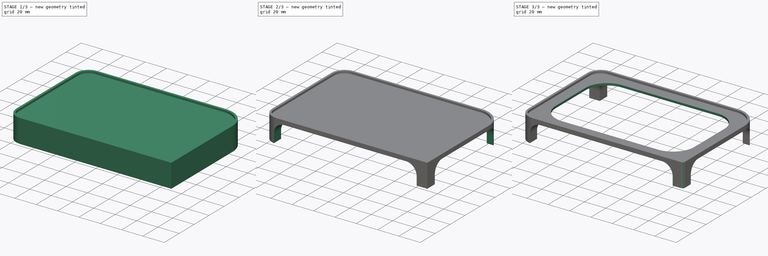
[diagram: build sequence overview — one tinted view per stage of 3, left to right]
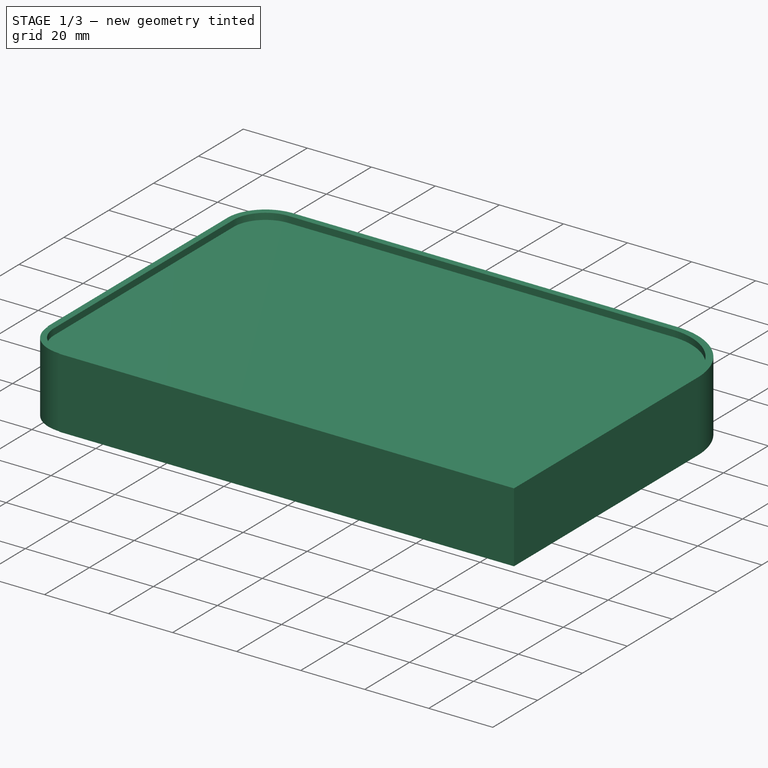
[diagram: stage 1 of 3 — iso view after this stage's code; geometry added in this stage tinted green]
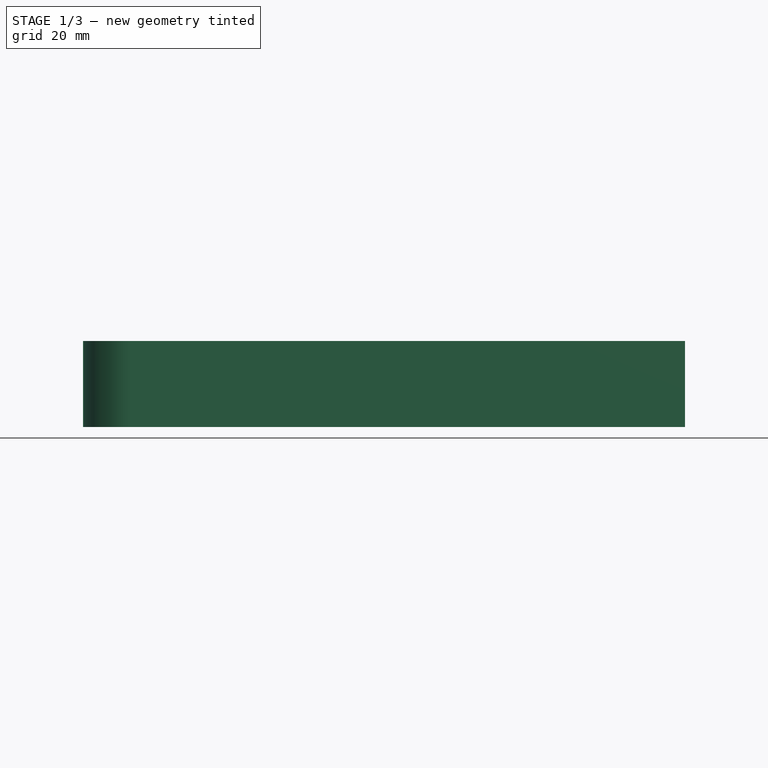
[diagram: stage 1 of 3 — front view after this stage's code; geometry added in this stage tinted green]
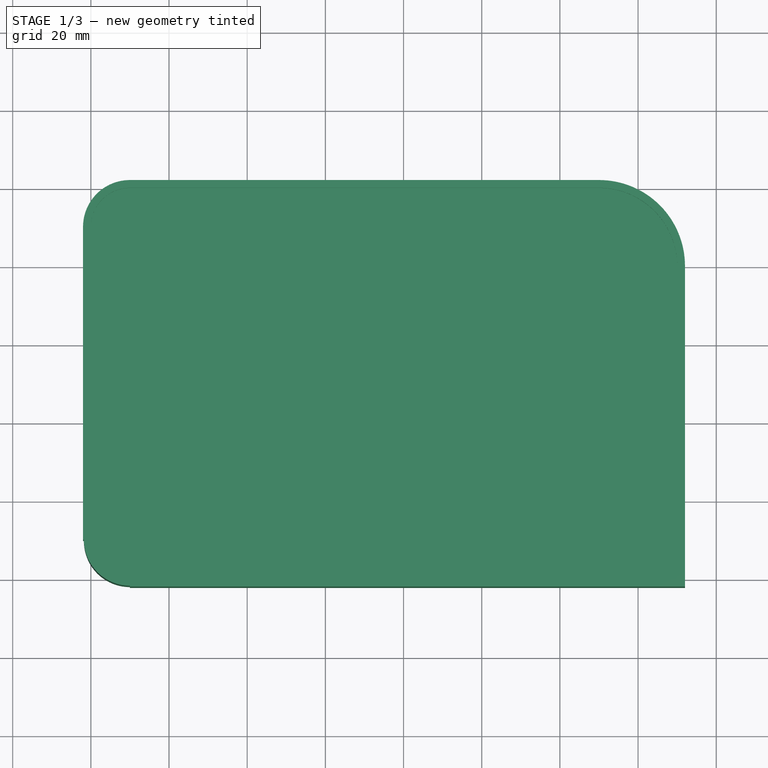
[diagram: stage 1 of 3 — top view after this stage's code; geometry added in this stage tinted green]
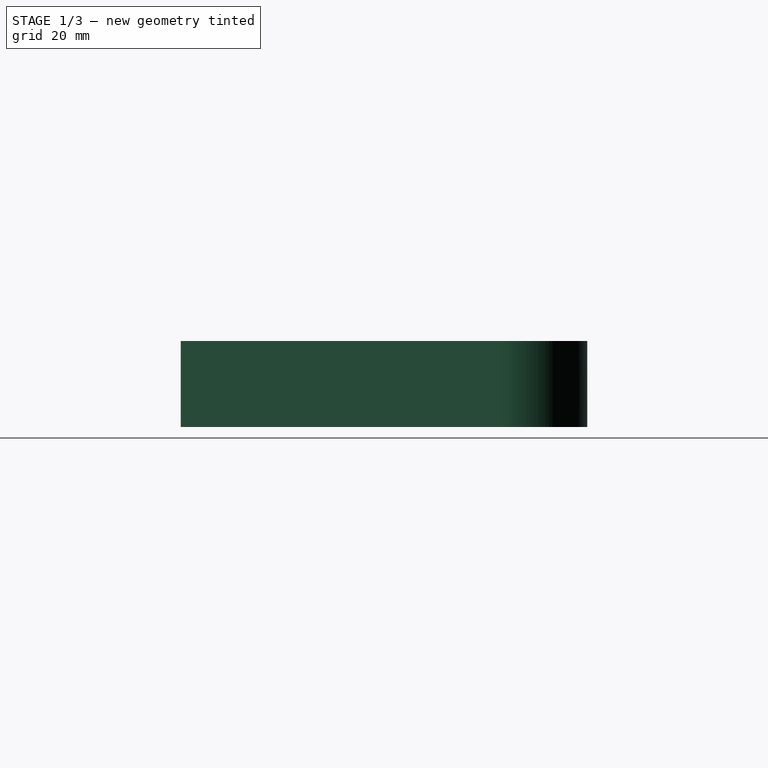
[diagram: stage 1 of 3 — right view after this stage's code; geometry added in this stage tinted green]
FCSTD DOCUMENT  (FreeCAD 0.21R33771 (Git))
Label: CarbonX1 poop chute table
License: All rights reserved
LicenseURL: http://en.wikipedia.org/wiki/All_rights_reserved
objects: Sketcher::SketchObject×4, PartDesign::Pocket×4, Part::Feature×1, PartDesign::FeatureBase×1, PartDesign::Pad×1, PartDesign::Fillet×1, PartDesign::Body×1
note: 19 computed .brp shape members not serialized (recipe doc carries the construction recipe); baked Part::Feature solids carry a one-line shape summary decoded from their .brp

FEATURE [Sketcher::SketchObject] Sketch
  FullyConstrained = true
  MapMode = 5
  Support = -> [XY_Plane]
  sketch-geometry (9):
    g0: ArcOfCircle CenterX=10 CenterY=10 CenterZ=0 NormalX=0 NormalY=0 NormalZ=1 AngleXU=0 Radius=10 StartAngle=3.14159 EndAngle=4.71239
    g1: LineSegment StartX=0 StartY=10 StartZ=0 EndX=0 EndY=90 EndZ=0
    g2: ArcOfCircle CenterX=10 CenterY=90 CenterZ=0 NormalX=0 NormalY=0 NormalZ=1 AngleXU=0 Radius=10 StartAngle=1.5708 EndAngle=3.14159
    g3: LineSegment StartX=10 StartY=100 StartZ=0 EndX=130 EndY=100 EndZ=0
    g4: ArcOfCircle CenterX=130 CenterY=80 CenterZ=0 NormalX=0 NormalY=0 NormalZ=1 AngleXU=0 Radius=20 StartAngle=0 EndAngle=1.5708
    g5: LineSegment StartX=150 StartY=80 StartZ=0 EndX=150 EndY=0 EndZ=0
    g6: LineSegment StartX=150 StartY=0 StartZ=0 EndX=10 EndY=0 EndZ=0
    g7: GeomPoint X=0 Y=0 Z=0
    g8: GeomPoint X=150 Y=100 Z=0
  constraints (21):
    c: Tangent(g0,g1) = 1.5708
    c: Tangent(g1,g2) = 1.5708
    c: Tangent(g2,g3) = 1.5708
    c: Tangent(g3,g4) = 1.5708
    c: Tangent(g4,g5) = 1.5708
    c: Tangent(g6,g0) = 1.5708
    c: Horizontal(g3)
    c: Horizontal(g6)
    c: Vertical(g1)
    c: Vertical(g5)
    c: Equal(g0,g2)
    c: PointOnObject(g7,g1)
    c: PointOnObject(g7,g6)
    c: PointOnObject(g8,g3)
    c: PointOnObject(g8,g5)
    c: Coincident(g7,g-1)
    c: Radius(g4) = 20
    c: Radius(g2) = 10
    c: Coincident(g5,g6)
    c: DistanceY(g7,g2) = 100
    c: DistanceX(g7,g5) = 150
FEATURE [Part::Feature] Offset
  shape: bbox 154 x 104 x 2e-07 mm, 0 faces, 0 solids (baked)
FEATURE [PartDesign::FeatureBase] BaseFeature
  BaseFeature = -> Offset
FEATURE [PartDesign::Pad] Pad
  BaseFeature = -> BaseFeature
  Direction = (0,0,1)
  Length = 22
  Length2 = 10
  Profile = -> BaseFeature
  Reversed = true
  Type = 0
FEATURE [PartDesign::Pocket] Pocket
  BaseFeature = -> Pad
  Direction = (0,0,-1)
  Length = 2
  Length2 = 5
  Profile = -> Sketch
  ReferenceAxis = -> Sketch [N_Axis]
  Type = 0
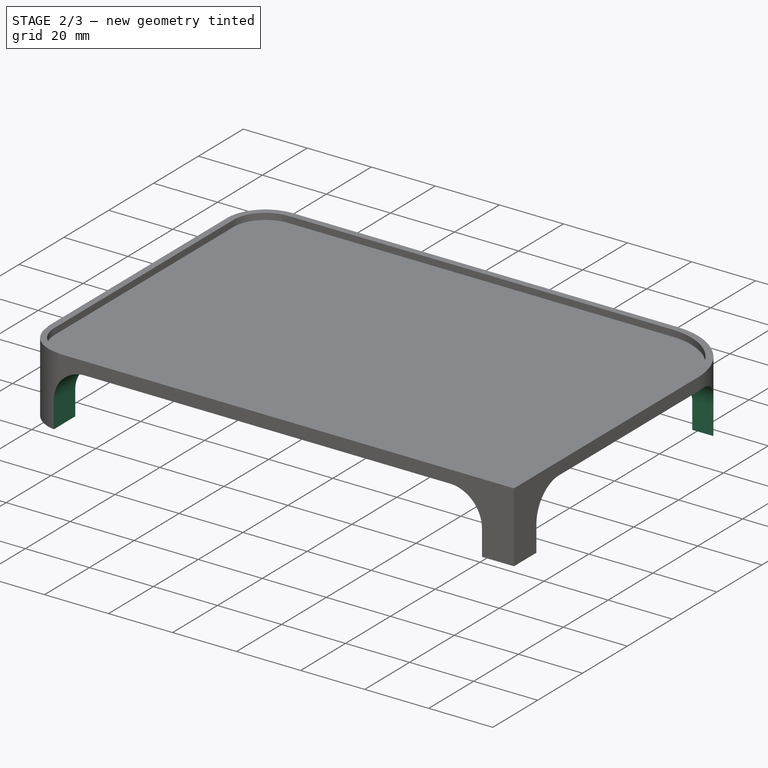
[diagram: stage 2 of 3 — iso view after this stage's code; geometry added in this stage tinted green]
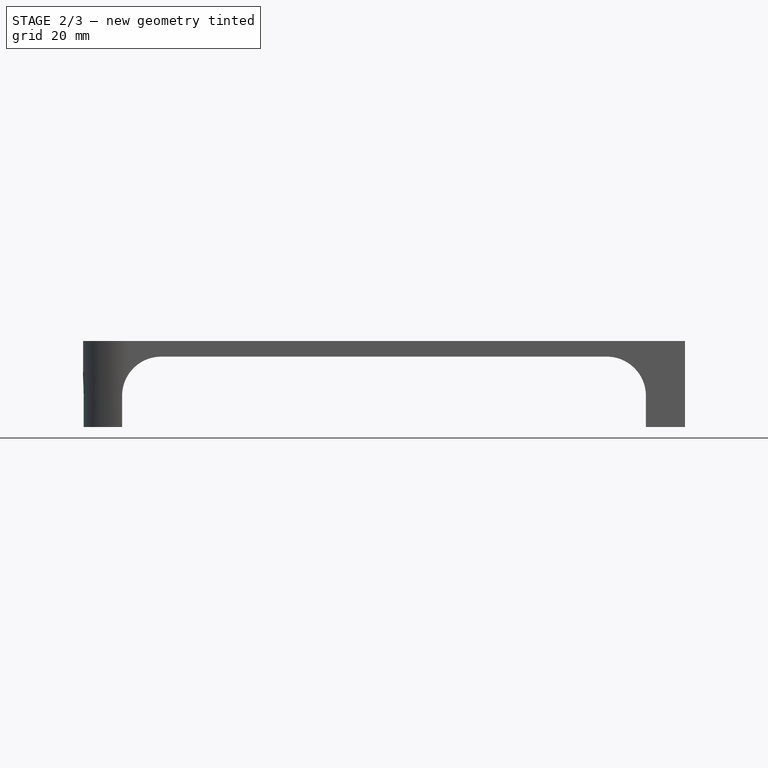
[diagram: stage 2 of 3 — front view after this stage's code; geometry added in this stage tinted green]
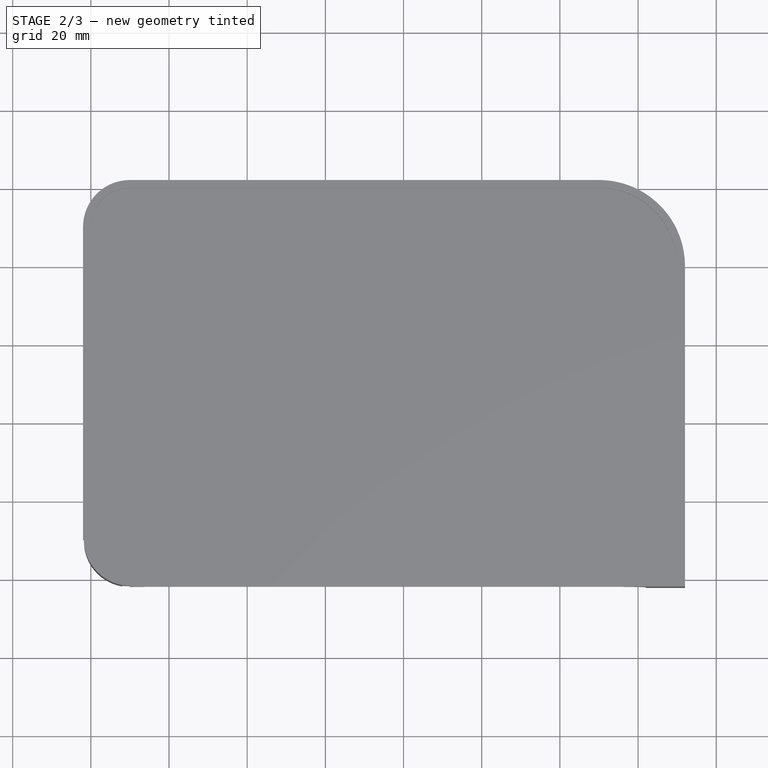
[diagram: stage 2 of 3 — top view after this stage's code; geometry added in this stage tinted green]
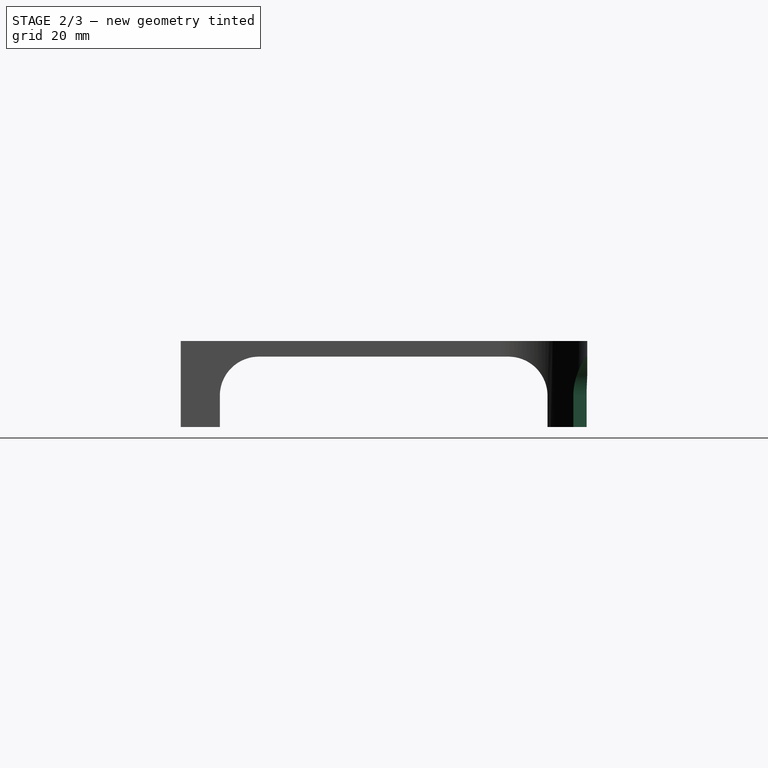
[diagram: stage 2 of 3 — right view after this stage's code; geometry added in this stage tinted green]
FEATURE [Sketcher::SketchObject] Sketch001
  ExternalGeometry = -> [Pocket]
  FullyConstrained = true
  MapMode = 5
  Placement = pos=(0,0,0) rot=(1,0,0;1.5708rad)
  Support = -> [XZ_Plane]
  sketch-geometry (7):
    g0: LineSegment StartX=8 StartY=-22 StartZ=0 EndX=8 EndY=-14 EndZ=0
    g1: ArcOfCircle CenterX=18 CenterY=-14 CenterZ=0 NormalX=0 NormalY=0 NormalZ=1 AngleXU=0 Radius=10 StartAngle=1.5708 EndAngle=3.14159
    g2: LineSegment StartX=18 StartY=-4 StartZ=0 EndX=132 EndY=-4 EndZ=0
    g3: ArcOfCircle CenterX=132 CenterY=-14 CenterZ=0 NormalX=0 NormalY=0 NormalZ=1 AngleXU=0 Radius=10 StartAngle=0 EndAngle=1.5708
    g4: LineSegment StartX=142 StartY=-14 StartZ=0 EndX=142 EndY=-22 EndZ=0
    g5: LineSegment StartX=142 StartY=-22 StartZ=0 EndX=8 EndY=-22 EndZ=0
    g6: GeomPoint X=75 Y=-22 Z=0
  constraints (18):
    c: Vertical(g0)
    c: Tangent(g0,g1) = 1.5708
    c: Coincident(g1,g2)
    c: Horizontal(g2)
    c: Tangent(g2,g3) = 1.5708
    c: Coincident(g3,g4)
    c: Vertical(g4)
    c: Coincident(g4,g5)
    c: Coincident(g5,g0)
    c: Horizontal(g5)
    c: Symmetric(g0,g4,g6)
    c: Symmetric(g-3,g-4,g6)
    c: Horizontal(g3,g3)
    c: Vertical(g1,g1)
    c: Radius(g1) = 10
    c: Equal(g1,g3)
    c: DistanceY(g1,g-1) = 4
    c: DistanceX(g-3,g0) = 10
FEATURE [PartDesign::Pocket] Pocket001
  BaseFeature = -> Pocket
  Direction = (0,1,-2e-16)
  Length = 5
  Length2 = 5
  Midplane = true
  Profile = -> Sketch001
  ReferenceAxis = -> Sketch001 [N_Axis]
  Type = 1
FEATURE [Sketcher::SketchObject] Sketch002
  ExternalGeometry = -> [Pocket001]
  FullyConstrained = true
  MapMode = 5
  Placement = pos=(0,0,0) rot=(0.57735,0.57735,0.57735;2.0944rad)
  Support = -> [YZ_Plane]
  sketch-geometry (7):
    g0: LineSegment StartX=8 StartY=-22 StartZ=0 EndX=8 EndY=-14 EndZ=0
    g1: ArcOfCircle CenterX=18 CenterY=-14 CenterZ=0 NormalX=0 NormalY=0 NormalZ=1 AngleXU=0 Radius=10 StartAngle=1.5708 EndAngle=3.14159
    g2: LineSegment StartX=18 StartY=-4 StartZ=0 EndX=81.8322 EndY=-4 EndZ=0
    g3: ArcOfCircle CenterX=81.8322 CenterY=-14 CenterZ=0 NormalX=0 NormalY=0 NormalZ=1 AngleXU=0 Radius=10 StartAngle=0 EndAngle=1.5708
    g4: LineSegment StartX=91.8322 StartY=-14 StartZ=0 EndX=91.8322 EndY=-22 EndZ=0
    g5: LineSegment StartX=91.8322 StartY=-22 StartZ=0 EndX=8 EndY=-22 EndZ=0
    g6: GeomPoint X=49.9161 Y=-22 Z=0
  constraints (18):
    c: Vertical(g0)
    c: Tangent(g0,g1) = 1.5708
    c: Coincident(g1,g2)
    c: Horizontal(g2)
    c: Tangent(g2,g3) = 1.5708
    c: Coincident(g3,g4)
    c: Vertical(g4)
    c: Coincident(g4,g5)
    c: Coincident(g5,g0)
    c: Horizontal(g5)
    c: Symmetric(g0,g4,g6)
    c: Symmetric(g-3,g-4,g6)
    c: Equal(g1,g3)
    c: Horizontal(g3,g3)
    c: Vertical(g1,g1)
    c: DistanceX(g-3,g0) = 10
    c: DistanceY(g1,g-1) = 4
    c: Radius(g1) = 10
FEATURE [PartDesign::Pocket] Pocket002
  BaseFeature = -> Pocket001
  Direction = (-1,2e-16,-3e-16)
  Length = 5
  Length2 = 5
  Midplane = true
  Profile = -> Sketch002
  ReferenceAxis = -> Sketch002 [N_Axis]
  Type = 1
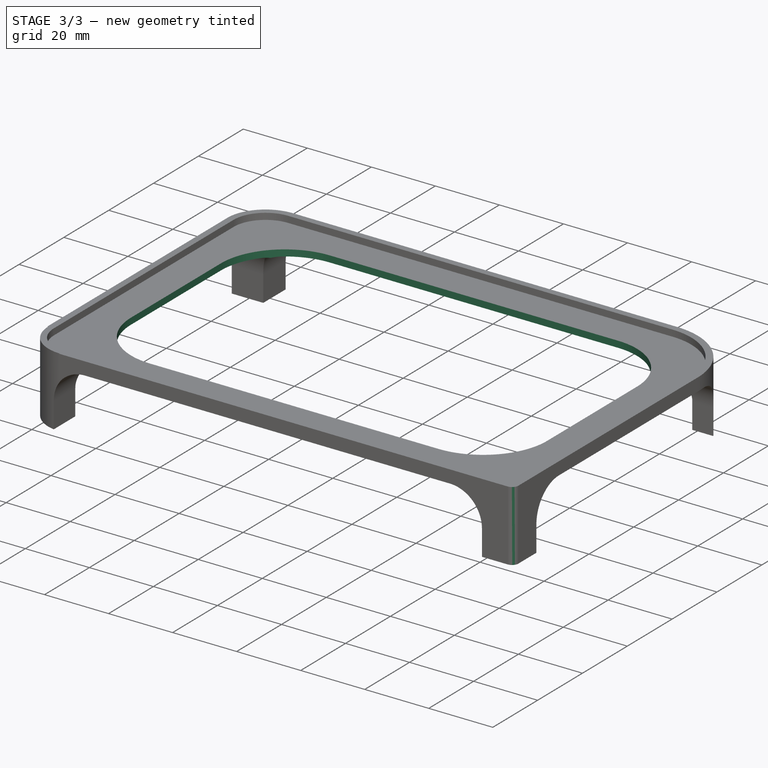
[diagram: stage 3 of 3 — iso view after this stage's code; geometry added in this stage tinted green]
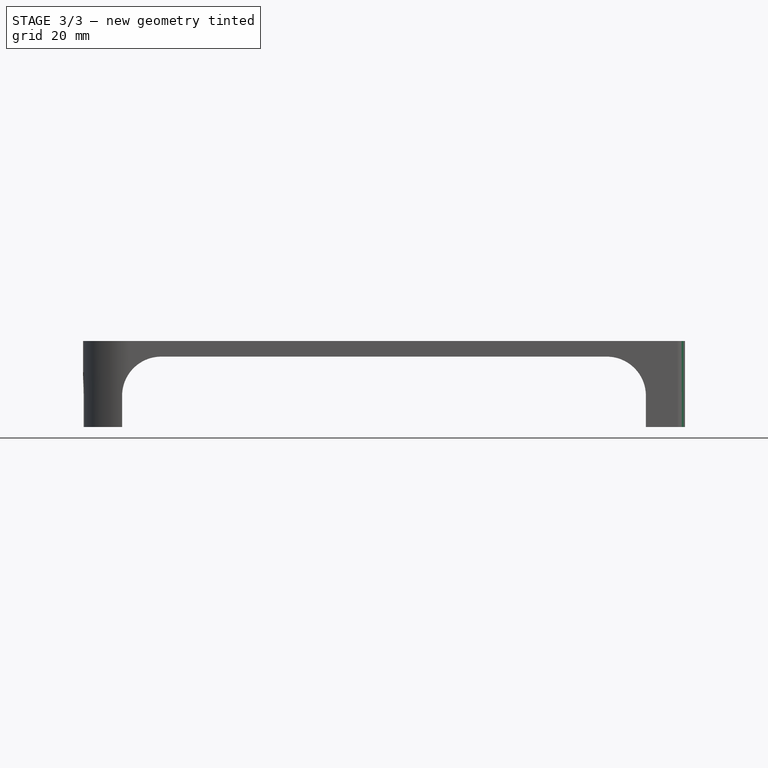
[diagram: stage 3 of 3 — front view after this stage's code; geometry added in this stage tinted green]
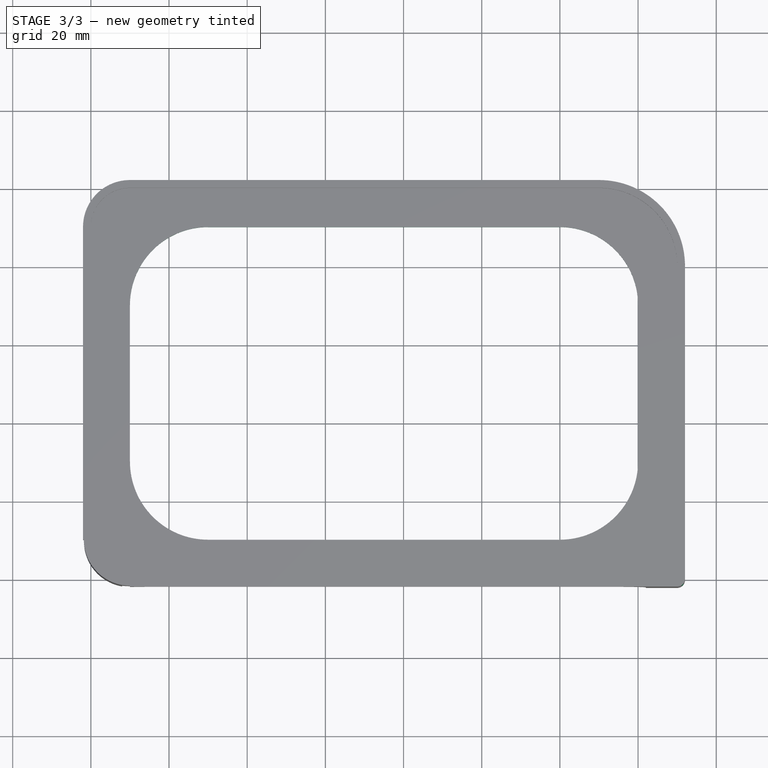
[diagram: stage 3 of 3 — top view after this stage's code; geometry added in this stage tinted green]
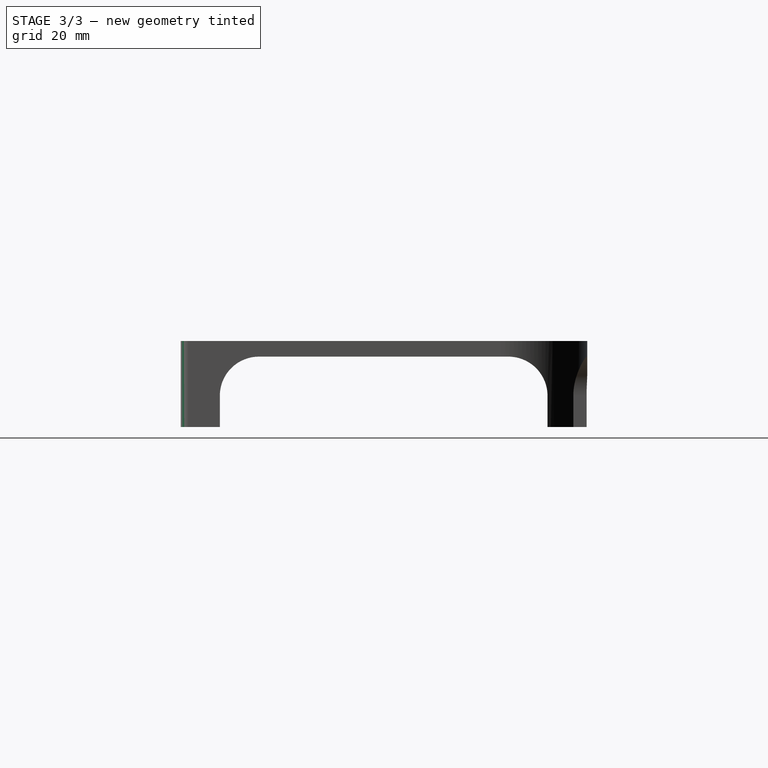
[diagram: stage 3 of 3 — right view after this stage's code; geometry added in this stage tinted green]
FEATURE [PartDesign::Fillet] Fillet
  Base = -> Pocket002 [Edge44]
  BaseFeature = -> Pocket002
  Radius = 2
  SupportTransform = false
  UseAllEdges = false
FEATURE [Sketcher::SketchObject] Sketch003
  ExternalGeometry = -> [Sketch]
  FullyConstrained = true
  MapMode = 5
  Placement = pos=(0,0,-2) rot=(0,0,1;0rad)
  Support = -> [Fillet]
  expr: Constraints[24] = .Constraints.Left
  sketch-geometry (10):
    g0: ArcOfCircle CenterX=30 CenterY=70 CenterZ=0 NormalX=0 NormalY=0 NormalZ=1 AngleXU=0 Radius=20 StartAngle=1.5708 EndAngle=3.14159
    g1: LineSegment StartX=30 StartY=90 StartZ=0 EndX=120 EndY=90 EndZ=0
    g2: ArcOfCircle CenterX=120 CenterY=70 CenterZ=0 NormalX=0 NormalY=0 NormalZ=1 AngleXU=0 Radius=20 StartAngle=0 EndAngle=1.5708
    g3: LineSegment StartX=140 StartY=70 StartZ=0 EndX=140 EndY=30 EndZ=0
    g4: ArcOfCircle CenterX=120 CenterY=30 CenterZ=0 NormalX=0 NormalY=0 NormalZ=1 AngleXU=0 Radius=20 StartAngle=4.71239 EndAngle=6.28319
    g5: LineSegment StartX=120 StartY=10 StartZ=0 EndX=30 EndY=10 EndZ=0
    g6: ArcOfCircle CenterX=30 CenterY=30 CenterZ=0 NormalX=0 NormalY=0 NormalZ=1 AngleXU=0 Radius=20 StartAngle=3.14159 EndAngle=4.71239
    g7: LineSegment StartX=10 StartY=30 StartZ=0 EndX=10 EndY=70 EndZ=0
    g8: GeomPoint X=10 Y=90 Z=0
    g9: GeomPoint X=140 Y=10 Z=0
  constraints (25):
    c: Tangent(g0,g1) = 1.5708
    c: Tangent(g1,g2) = 1.5708
    c: Tangent(g2,g3) = 1.5708
    c: Tangent(g3,g4) = 1.5708
    c: Tangent(g4,g5) = 1.5708
    c: Tangent(g5,g6) = 1.5708
    c: Tangent(g6,g7) = 1.5708
    c: Tangent(g7,g0) = 1.5708
    c: Horizontal(g1)
    c: Horizontal(g5)
    c: Vertical(g3)
    c: Vertical(g7)
    c: Equal(g0,g2)
    c: Equal(g2,g4)
    c: Equal(g4,g6)
    c: PointOnObject(g8,g1)
    c: PointOnObject(g8,g7)
    c: PointOnObject(g9,g3)
    c: PointOnObject(g9,g5)
    c: Radius(g0) = 20
    c: Horizontal(g-4,g0)
    c: Horizontal(g-4,g5)
    c: Vertical(g-3,g0)
    c: DistanceX(g-4,g6) = 10  'Left'
    c: DistanceX(g3,g-6) = 10
FEATURE [PartDesign::Pocket] Pocket003
  BaseFeature = -> Fillet
  Direction = (0,0,-1)
  Length = 5
  Length2 = 5
  Profile = -> Sketch003
  ReferenceAxis = -> Sketch003 [N_Axis]
  Type = 1
FEATURE [PartDesign::Body] Body
  BaseFeature = -> Offset
  Group = -> [BaseFeature,Sketch,Pad,Pocket,Sketch001,Pocket001,Sketch002,Pocket002,Fillet,Sketch003,Pocket003]
  Origin = -> Origin
  Tip = -> Pocket003
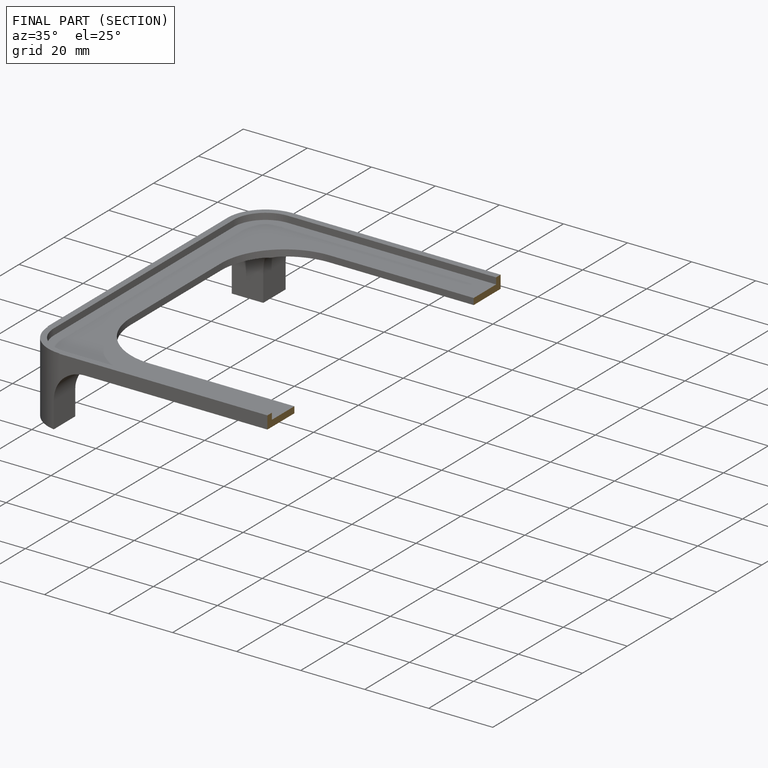
[diagram: finished part — half-section view (interior)]
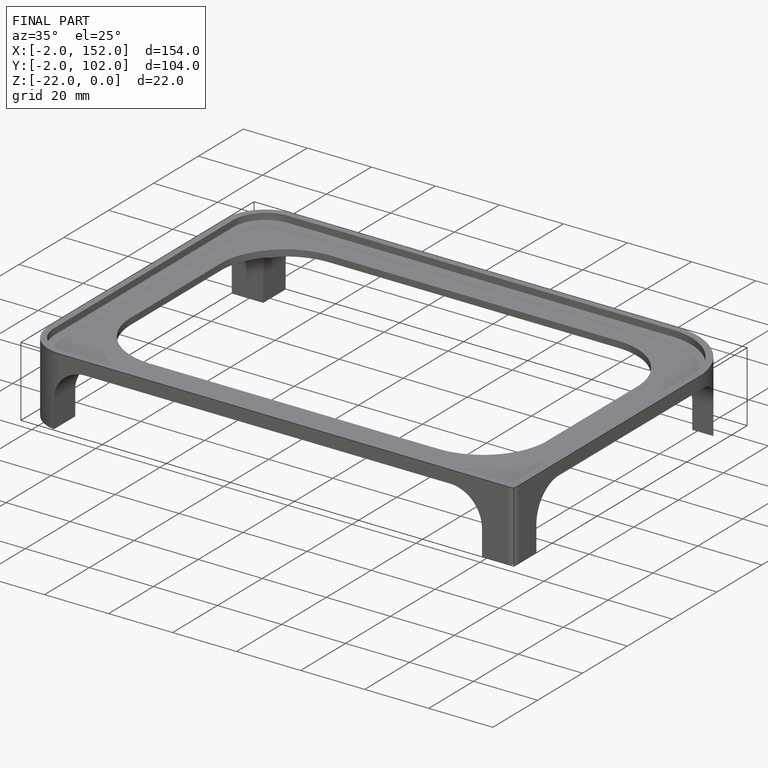
[diagram: finished part — iso view with bounding-box wireframe]
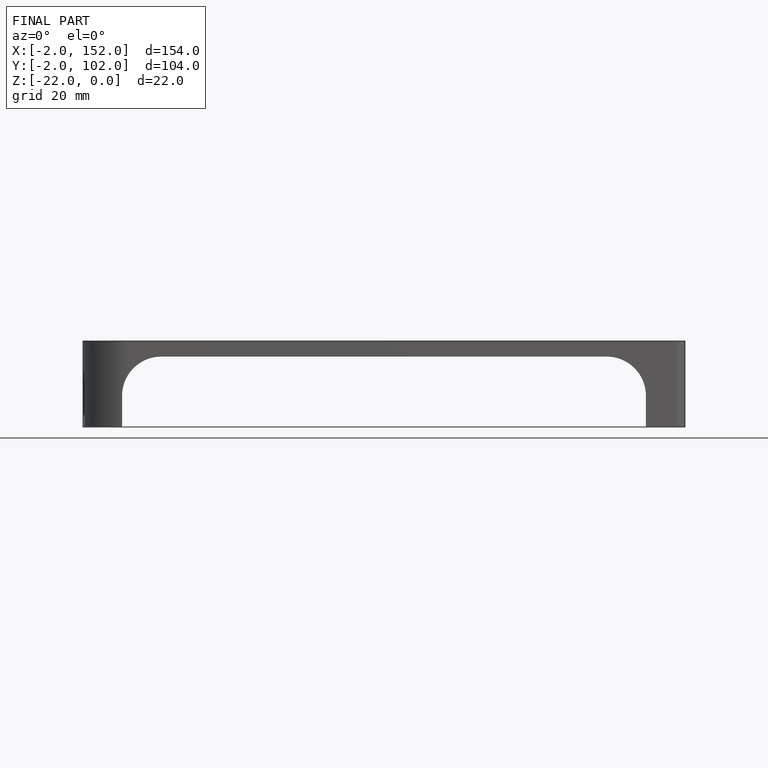
[diagram: finished part — front view with bounding-box wireframe]
